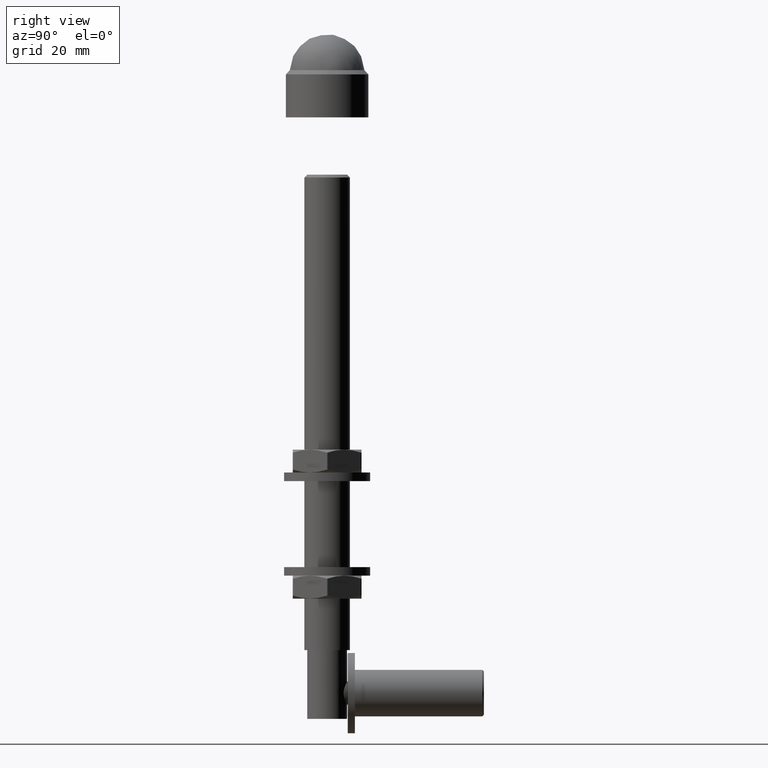
[diagram: clean part render]
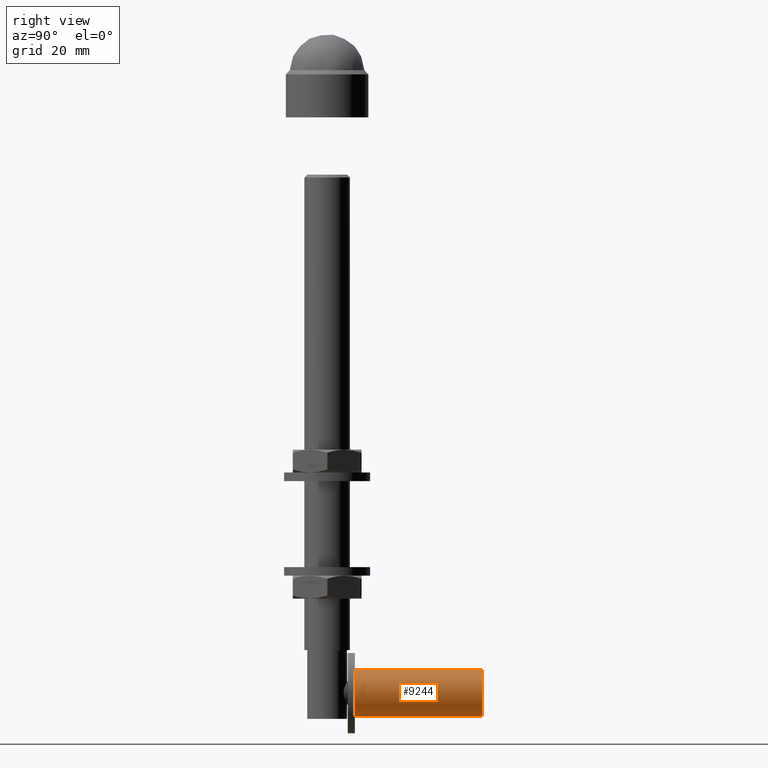
[diagram: same view with one face highlighted and labeled with its STEP entity id]
A machine part, right view. The second image highlights one B-rep face of the part: STEP entity #9244.
In plain terms, the highlighted cylindrical surface (bore or boss wall) has radius 8.1 mm, axis along (-0, -1, -0).
Its self-contained STEP definition (entity closure, byte-faithful):
#403 = VERTEX_POINT ( 'NONE', #14146 ) ;
#646 = CIRCLE ( 'NONE', #5165, 8.099999999999996092 ) ;
#2031 = CARTESIAN_POINT ( 'NONE',  ( 0.000000000000000000, 9.699999999999977973, -86.00000000000000000 ) ) ;
#2314 = CARTESIAN_POINT ( 'NONE',  ( 0.000000000000000000, 54.20000000000000284, -77.90000000000000568 ) ) ;
#2383 = AXIS2_PLACEMENT_3D ( 'NONE', #6740, #14108, #15269 ) ;
#3135 = ORIENTED_EDGE ( 'NONE', *, *, #6844, .F. ) ;
#3895 = DIRECTION ( 'NONE',  ( 0.000000000000000000, 0.000000000000000000, -1.000000000000000000 ) ) ;
#5165 = AXIS2_PLACEMENT_3D ( 'NONE', #2031, #9092, #9147 ) ;
#6740 = CARTESIAN_POINT ( 'NONE',  ( 0.000000000000000000, 54.20000000000000284, -86.00000000000000000 ) ) ;
#6844 = EDGE_CURVE ( 'NONE', #403, #403, #646, .T. ) ;
#8402 = CIRCLE ( 'NONE', #2383, 8.099999999999996092 ) ;
#8801 = FACE_OUTER_BOUND ( 'NONE', #10919, .T. ) ;
#9092 = DIRECTION ( 'NONE',  ( -0.000000000000000000, -1.000000000000000000, -0.000000000000000000 ) ) ;
#9147 = DIRECTION ( 'NONE',  ( 0.000000000000000000, 0.000000000000000000, -1.000000000000000000 ) ) ;
#9244 = ADVANCED_FACE ( 'NONE', ( #8801, #14419 ), #11414, .T. ) ;
#9399 = ORIENTED_EDGE ( 'NONE', *, *, #11130, .T. ) ;
#9845 = DIRECTION ( 'NONE',  ( -0.000000000000000000, -1.000000000000000000, -0.000000000000000000 ) ) ;
#10203 = AXIS2_PLACEMENT_3D ( 'NONE', #14469, #9845, #3895 ) ;
#10357 = VERTEX_POINT ( 'NONE', #2314 ) ;
#10919 = EDGE_LOOP ( 'NONE', ( #9399 ) ) ;
#11130 = EDGE_CURVE ( 'NONE', #10357, #10357, #8402, .T. ) ;
#11414 = CYLINDRICAL_SURFACE ( 'NONE', #10203, 8.099999999999996092 ) ;
#12778 = EDGE_LOOP ( 'NONE', ( #3135 ) ) ;
#14108 = DIRECTION ( 'NONE',  ( -0.000000000000000000, -1.000000000000000000, -0.000000000000000000 ) ) ;
#14146 = CARTESIAN_POINT ( 'NONE',  ( 0.000000000000000000, 9.699999999999977973, -94.10000000000000853 ) ) ;
#14419 = FACE_OUTER_BOUND ( 'NONE', #12778, .T. ) ;
#14469 = CARTESIAN_POINT ( 'NONE',  ( 0.000000000000000000, 0.000000000000000000, -86.00000000000000000 ) ) ;
#15269 = DIRECTION ( 'NONE',  ( 0.000000000000000000, 0.000000000000000000, 1.000000000000000000 ) ) ;